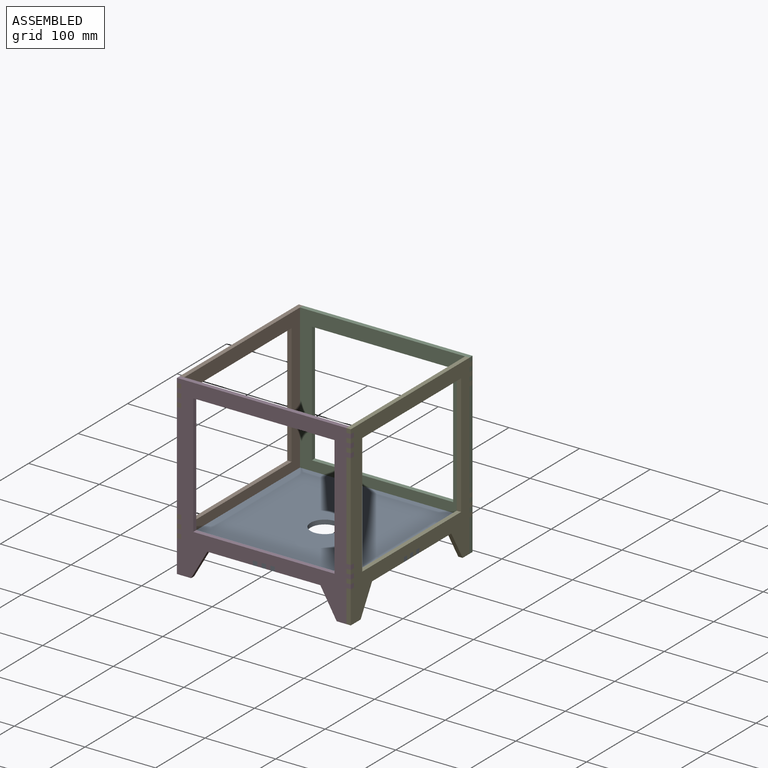
[diagram: assembled view]
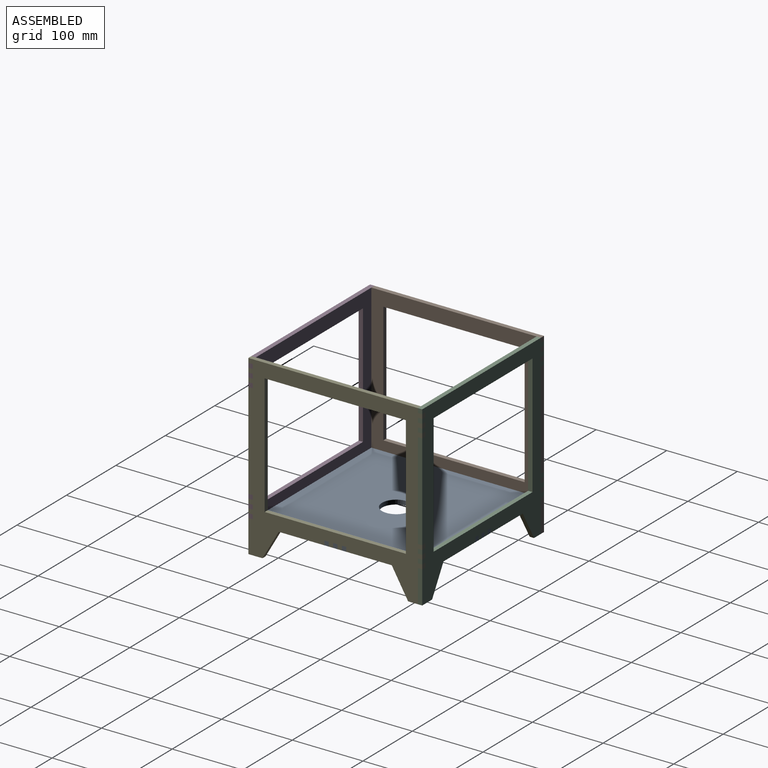
[diagram: assembled view, second angle]
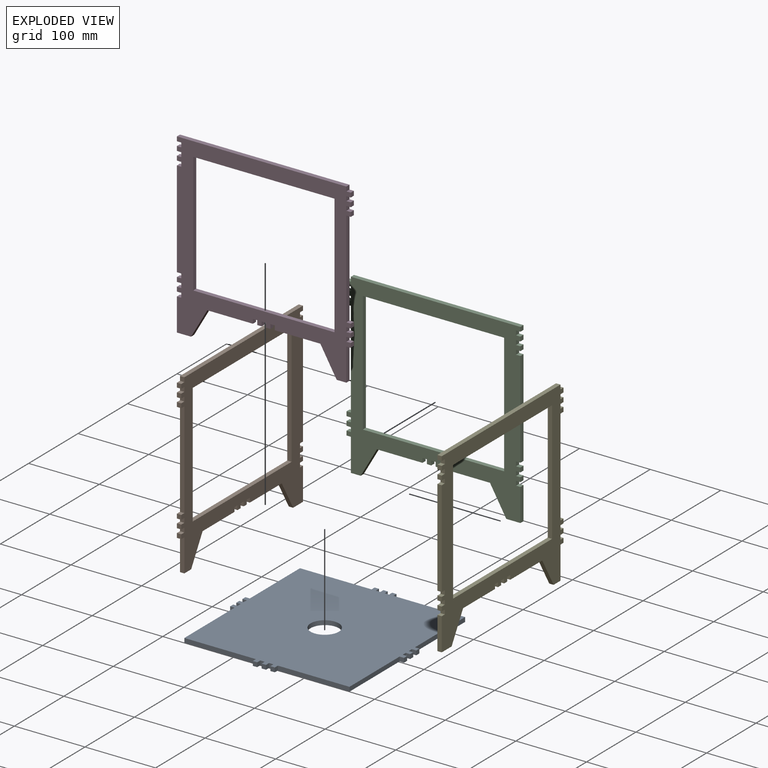
[diagram: exploded view]
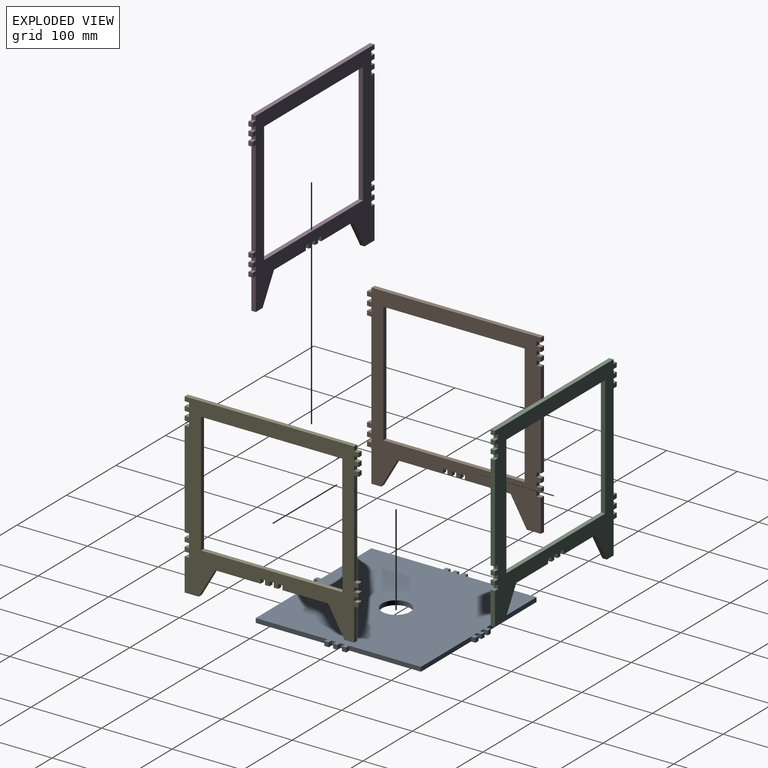
[diagram: exploded view, second angle]
ASSEMBLY  parts=5 mates=4
PART A: 55 faces, bbox 246.2x246.2x6.2 mm
  f0: plane 6.2x6.2mm, normal (1,0,0), area 38.4mm2, adj f1,f51,f53,f54
  f1: plane 6.2x6.2mm, normal (0,-1,0), area 38.4mm2, adj f0,f2,f53,f54
  f2: plane 6.2x6.2mm, normal (-1,0,0), area 38.4mm2, adj f1,f3,f53,f54
  f3: plane 6.2x6.2mm, normal (0,-1,0), area 38.4mm2, adj f2,f4,f53,f54
  f4: plane 6.2x6.2mm, normal (1,0,0), area 38.4mm2, adj f3,f5,f53,f54
  f5: plane 101.4x6.2mm, normal (0,-1,0), area 628.7mm2, adj f4,f6,f53,f54
  f6: plane 101.4x6.2mm, normal (1,0,0), area 628.7mm2, adj f5,f7,f53,f54
  f7: plane 6.2x6.2mm, normal (0,-1,0), area 38.4mm2, adj f6,f8,f53,f54
  f8: plane 6.2x6.2mm, normal (1,0,0), area 38.4mm2, adj f7,f9,f53,f54
  f9: plane 6.2x6.2mm, normal (0,1,0), area 38.4mm2, adj f8,f10,f53,f54
  f10: plane 6.2x6.2mm, normal (1,0,0), area 38.4mm2, adj f9,f11,f53,f54
  f11: plane 6.2x6.2mm, normal (0,-1,0), area 38.4mm2, adj f10,f12,f53,f54
  f12: plane 6.2x6.2mm, normal (1,0,0), area 38.4mm2, adj f11,f13,f53,f54
  f13: plane 6.2x6.2mm, normal (0,1,0), area 38.4mm2, adj f12,f14,f53,f54
  f14: plane 6.2x6.2mm, normal (1,0,0), area 38.4mm2, adj f13,f15,f53,f54
  f15: plane 6.2x6.2mm, normal (0,-1,0), area 38.4mm2, adj f14,f16,f53,f54
  f16: plane 6.2x6.2mm, normal (1,0,0), area 38.4mm2, adj f15,f17,f53,f54
  f17: plane 6.2x6.2mm, normal (0,1,0), area 38.4mm2, adj f16,f18,f53,f54
  f18: plane 101.4x6.2mm, normal (1,0,0), area 628.7mm2, adj f17,f19,f53,f54
  f19: plane 101.4x6.2mm, normal (0,1,0), area 628.7mm2, adj f18,f20,f53,f54
  f20: plane 6.2x6.2mm, normal (1,0,0), area 38.4mm2, adj f19,f21,f53,f54
  f21: plane 6.2x6.2mm, normal (0,1,0), area 38.4mm2, adj f20,f22,f53,f54
  f22: plane 6.2x6.2mm, normal (-1,0,0), area 38.4mm2, adj f21,f23,f53,f54
  f23: plane 6.2x6.2mm, normal (0,1,0), area 38.4mm2, adj f22,f24,f53,f54
  f24: plane 6.2x6.2mm, normal (1,0,0), area 38.4mm2, adj f23,f25,f53,f54
  f25: plane 6.2x6.2mm, normal (0,1,0), area 38.4mm2, adj f24,f26,f53,f54
  f26: plane 6.2x6.2mm, normal (-1,0,0), area 38.4mm2, adj f25,f27,f53,f54
  f27: plane 6.2x6.2mm, normal (0,1,0), area 38.4mm2, adj f26,f28,f53,f54
  f28: plane 6.2x6.2mm, normal (1,0,0), area 38.4mm2, adj f27,f29,f53,f54
  f29: plane 6.2x6.2mm, normal (0,1,0), area 38.4mm2, adj f28,f30,f53,f54
  f30: plane 6.2x6.2mm, normal (-1,0,0), area 38.4mm2, adj f29,f31,f53,f54
  f31: plane 101.4x6.2mm, normal (0,1,0), area 628.7mm2, adj f30,f32,f53,f54
  f32: plane 101.4x6.2mm, normal (-1,0,0), area 628.7mm2, adj f31,f33,f53,f54
  f33: plane 6.2x6.2mm, normal (0,1,0), area 38.4mm2, adj f32,f34,f53,f54
  f34: plane 6.2x6.2mm, normal (-1,0,0), area 38.4mm2, adj f33,f35,f53,f54
  f35: plane 6.2x6.2mm, normal (0,-1,0), area 38.4mm2, adj f34,f36,f53,f54
  f36: plane 6.2x6.2mm, normal (-1,0,0), area 38.4mm2, adj f35,f37,f53,f54
  f37: plane 6.2x6.2mm, normal (0,1,0), area 38.4mm2, adj f36,f38,f53,f54
  f38: plane 6.2x6.2mm, normal (-1,0,0), area 38.4mm2, adj f37,f39,f53,f54
  f39: plane 6.2x6.2mm, normal (0,-1,0), area 38.4mm2, adj f38,f40,f53,f54
  f40: plane 6.2x6.2mm, normal (-1,0,0), area 38.4mm2, adj f39,f41,f53,f54
  f41: plane 6.2x6.2mm, normal (0,1,0), area 38.4mm2, adj f40,f42,f53,f54
  f42: plane 6.2x6.2mm, normal (-1,0,0), area 38.4mm2, adj f41,f43,f53,f54
  f43: plane 6.2x6.2mm, normal (0,-1,0), area 38.4mm2, adj f42,f44,f53,f54
  f44: plane 101.4x6.2mm, normal (-1,0,0), area 628.7mm2, adj f43,f45,f53,f54
  f45: plane 101.4x6.2mm, normal (0,-1,0), area 628.7mm2, adj f44,f46,f53,f54
  f46: plane 6.2x6.2mm, normal (-1,0,0), area 38.4mm2, adj f45,f47,f53,f54
  f47: plane 6.2x6.2mm, normal (0,-1,0), area 38.4mm2, adj f46,f48,f53,f54
  f48: plane 6.2x6.2mm, normal (1,0,0), area 38.4mm2, adj f47,f49,f53,f54
  f49: plane 6.2x6.2mm, normal (0,-1,0), area 38.4mm2, adj f48,f50,f53,f54
  f50: plane 6.2x6.2mm, normal (-1,0,0), area 38.4mm2, adj f49,f51,f53,f54
  f51: plane 6.2x6.2mm, normal (0,-1,0), area 38.4mm2, adj f0,f50,f53,f54
  f52: cylinder r=20mm len=40mm, axis (0,0,-1), area 779.1mm2, adj f53,f54
  f53: plane 246.2x246.2mm, normal (0,0,1), area 53867.1mm2, adj f0,f1,f2,f3,f4,f5,f6,f7
  f54: plane 246.2x246.2mm, normal (0,0,-1), area 53867.1mm2, adj f0,f1,f2,f3,f4,f5,f6,f7
PART B: 74 faces, bbox 246.2x6.2x251 mm
  f0: plane 6.2x6.2mm, normal (0,0,-1), area 38.4mm2, adj f3,f64,f65,f72
  f1: plane 64.51x6.2mm, normal (0,0,-1), area 399.9mm2, adj f3,f10,f64,f68
  f2: plane 6.2x6.2mm, normal (0,0,-1), area 38.4mm2, adj f3,f64,f66,f69
  f3: plane 251x246.2mm, normal (0,-1,0), area 18600.4mm2, adj f0,f1,f2,f4,f5,f6,f7,f8
  f4: plane 171x6.2mm, normal (1,0,0), area 1060.2mm2, adj f3,f5,f63,f64
  f5: plane 200x6.2mm, normal (0,0,-1), area 1240mm2, adj f3,f4,f6,f64
  f6: plane 171x6.2mm, normal (-1,0,0), area 1060.2mm2, adj f3,f5,f63,f64
  f7: plane 20x6.2mm, normal (0,0,-1), area 124mm2, adj f3,f8,f62,f64
  f8: plane 40x23.09mm, normal (0.87,0,-0.5), area 286.4mm2, adj f3,f7,f9,f64
  f9: plane 64.51x6.2mm, normal (0,0,-1), area 399.9mm2, adj f3,f8,f64,f71
  f10: plane 40x23.09mm, normal (-0.87,0,-0.5), area 286.4mm2, adj f1,f3,f11,f64
  f11: plane 13.8x6.2mm, normal (0,0,-1), area 85.6mm2, adj f3,f10,f12,f64
  f12: plane 46.2x6.2mm, normal (1,0,0), area 286.4mm2, adj f3,f11,f13,f64
  f13: plane 6.2x6.2mm, normal (0,0,-1), area 38.4mm2, adj f3,f12,f14,f64
  f14: plane 6.2x6.2mm, normal (1,0,0), area 38.4mm2, adj f3,f13,f15,f64
  f15: plane 6.2x6.2mm, normal (0,0,1), area 38.4mm2, adj f3,f14,f16,f64
  f16: plane 6.2x6.2mm, normal (1,0,0), area 38.4mm2, adj f3,f15,f17,f64
  f17: plane 6.2x6.2mm, normal (0,0,-1), area 38.4mm2, adj f3,f16,f18,f64
  f18: plane 6.2x6.2mm, normal (1,0,0), area 38.4mm2, adj f3,f17,f19,f64
  f19: plane 6.2x6.2mm, normal (0,0,1), area 38.4mm2, adj f3,f18,f20,f64
  f20: plane 6.2x6.2mm, normal (1,0,0), area 38.4mm2, adj f3,f19,f21,f64
  f21: plane 6.2x6.2mm, normal (0,0,-1), area 38.4mm2, adj f3,f20,f22,f64
  f22: plane 6.2x6.2mm, normal (1,0,0), area 38.4mm2, adj f3,f21,f23,f64
  f23: plane 6.2x6.2mm, normal (0,0,1), area 38.4mm2, adj f3,f22,f24,f64
  f24: plane 136.6x6.2mm, normal (1,0,0), area 846.9mm2, adj f3,f23,f25,f64
  f25: plane 6.2x6.2mm, normal (0,0,-1), area 38.4mm2, adj f3,f24,f26,f64
  f26: plane 6.2x6.2mm, normal (1,0,0), area 38.4mm2, adj f3,f25,f27,f64
  f27: plane 6.2x6.2mm, normal (0,0,1), area 38.4mm2, adj f3,f26,f28,f64
  f28: plane 6.2x6.2mm, normal (1,0,0), area 38.4mm2, adj f3,f27,f29,f64
  f29: plane 6.2x6.2mm, normal (0,0,-1), area 38.4mm2, adj f3,f28,f30,f64
  f30: plane 6.2x6.2mm, normal (1,0,0), area 38.4mm2, adj f3,f29,f31,f64
  f31: plane 6.2x6.2mm, normal (0,0,1), area 38.4mm2, adj f3,f30,f32,f64
  f32: plane 6.2x6.2mm, normal (1,0,0), area 38.4mm2, adj f3,f31,f33,f64
  f33: plane 6.2x6.2mm, normal (0,0,-1), area 38.4mm2, adj f3,f32,f34,f64
  f34: plane 6.2x6.2mm, normal (1,0,0), area 38.4mm2, adj f3,f33,f35,f64
  f35: plane 6.2x6.2mm, normal (0,0,1), area 38.4mm2, adj f3,f34,f36,f64
  f36: plane 6.2x6.2mm, normal (1,0,0), area 38.4mm2, adj f3,f35,f37,f64
  f37: plane 240x6.2mm, normal (0,0,1), area 1488mm2, adj f3,f36,f38,f64
  f38: plane 6.2x6.2mm, normal (-1,0,0), area 38.4mm2, adj f3,f37,f39,f64
  f39: plane 6.2x6.2mm, normal (0,0,-1), area 38.4mm2, adj f3,f38,f40,f64
  f40: plane 6.2x6.2mm, normal (-1,0,0), area 38.4mm2, adj f3,f39,f41,f64
  f41: plane 6.2x6.2mm, normal (0,0,1), area 38.4mm2, adj f3,f40,f42,f64
  f42: plane 6.2x6.2mm, normal (-1,0,0), area 38.4mm2, adj f3,f41,f43,f64
  f43: plane 6.2x6.2mm, normal (0,0,-1), area 38.4mm2, adj f3,f42,f44,f64
  f44: plane 6.2x6.2mm, normal (-1,0,0), area 38.4mm2, adj f3,f43,f45,f64
  f45: plane 6.2x6.2mm, normal (0,0,1), area 38.4mm2, adj f3,f44,f46,f64
  f46: plane 6.2x6.2mm, normal (-1,0,0), area 38.4mm2, adj f3,f45,f47,f64
  f47: plane 6.2x6.2mm, normal (0,0,-1), area 38.4mm2, adj f3,f46,f48,f64
  f48: plane 6.2x6.2mm, normal (-1,0,0), area 38.4mm2, adj f3,f47,f49,f64
  f49: plane 6.2x6.2mm, normal (0,0,1), area 38.4mm2, adj f3,f48,f50,f64
  f50: plane 136.6x6.2mm, normal (-1,0,0), area 846.9mm2, adj f3,f49,f51,f64
  f51: plane 6.2x6.2mm, normal (0,0,-1), area 38.4mm2, adj f3,f50,f52,f64
  f52: plane 6.2x6.2mm, normal (-1,0,0), area 38.4mm2, adj f3,f51,f53,f64
  f53: plane 6.2x6.2mm, normal (0,0,1), area 38.4mm2, adj f3,f52,f54,f64
  f54: plane 6.2x6.2mm, normal (-1,0,0), area 38.4mm2, adj f3,f53,f55,f64
  f55: plane 6.2x6.2mm, normal (0,0,-1), area 38.4mm2, adj f3,f54,f56,f64
  f56: plane 6.2x6.2mm, normal (-1,0,0), area 38.4mm2, adj f3,f55,f57,f64
  f57: plane 6.2x6.2mm, normal (0,0,1), area 38.4mm2, adj f3,f56,f58,f64
  f58: plane 6.2x6.2mm, normal (-1,0,0), area 38.4mm2, adj f3,f57,f59,f64
  f59: plane 6.2x6.2mm, normal (0,0,-1), area 38.4mm2, adj f3,f58,f60,f64
  f60: plane 6.2x6.2mm, normal (-1,0,0), area 38.4mm2, adj f3,f59,f61,f64
  f61: plane 6.2x6.2mm, normal (0,0,1), area 38.4mm2, adj f3,f60,f62,f64
  f62: plane 46.2x6.2mm, normal (-1,0,0), area 286.4mm2, adj f3,f7,f61,f64
  f63: plane 200x6.2mm, normal (0,0,1), area 1240mm2, adj f3,f4,f6,f64
  f64: plane 251x246.2mm, normal (0,1,0), area 18600.4mm2, adj f0,f1,f2,f4,f5,f6,f7,f8
  f65: plane 6.2x6.2mm, normal (1,0,0), area 38.4mm2, adj f0,f3,f64,f67
  f66: plane 6.2x6.2mm, normal (-1,0,0), area 38.4mm2, adj f2,f3,f64,f67
  f67: plane 6.2x6.2mm, normal (0,0,-1), area 38.4mm2, adj f3,f64,f65,f66
  f68: plane 6.2x6.2mm, normal (-1,0,0), area 38.4mm2, adj f1,f3,f64,f70
  f69: plane 6.2x6.2mm, normal (1,0,0), area 38.4mm2, adj f2,f3,f64,f70
  f70: plane 6.2x6.2mm, normal (0,0,-1), area 38.4mm2, adj f3,f64,f68,f69
  f71: plane 6.2x6.2mm, normal (1,0,0), area 38.4mm2, adj f3,f9,f64,f73
  f72: plane 6.2x6.2mm, normal (-1,0,0), area 38.4mm2, adj f0,f3,f64,f73
  f73: plane 6.2x6.2mm, normal (0,0,-1), area 38.4mm2, adj f3,f64,f71,f72
PART C: same geometry as B
PART D: same geometry as B
PART E: same geometry as B
PLACE A rot(axis=(-0.71,0.71,0),180deg) t=(-27.79,-11.14,34.44)mm
PLACE B rot(axis=(0,0,-1),90deg) t=(-261.59,254.36,-11.76)mm
PLACE C rot(axis=(0,0,1),180deg) t=(3.91,222.66,-11.76)mm
PLACE D t=(-293.29,-11.14,-11.76)mm
PLACE E rot(axis=(0,0,1),90deg) t=(-27.79,-42.84,-11.76)mm fixed
MATE fastened D.f67 <-> A.f54  axis (0,0,-1) through (-144.69,-14.24,34.44)mm
MATE fastened E.f40 <-> D.f64  axis (0,-1,0) through (-24.69,-11.14,229.94)mm
MATE fastened E.f64 <-> C.f40  axis (-1,0,0) through (-27.79,225.76,229.94)mm
MATE fastened C.f64 <-> B.f40  axis (0,-1,0) through (-264.69,222.66,229.94)mm
